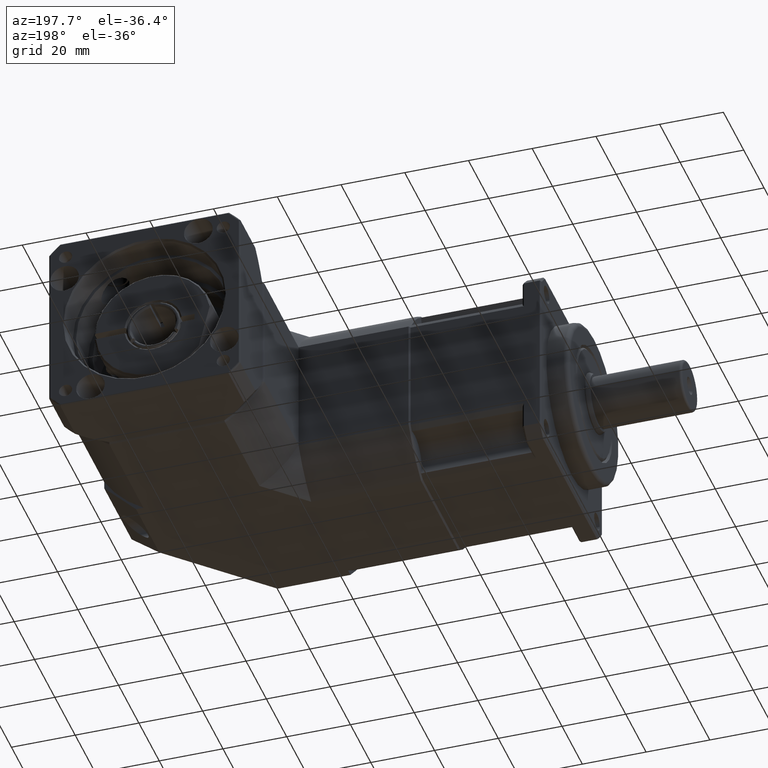
[diagram: clean part render]
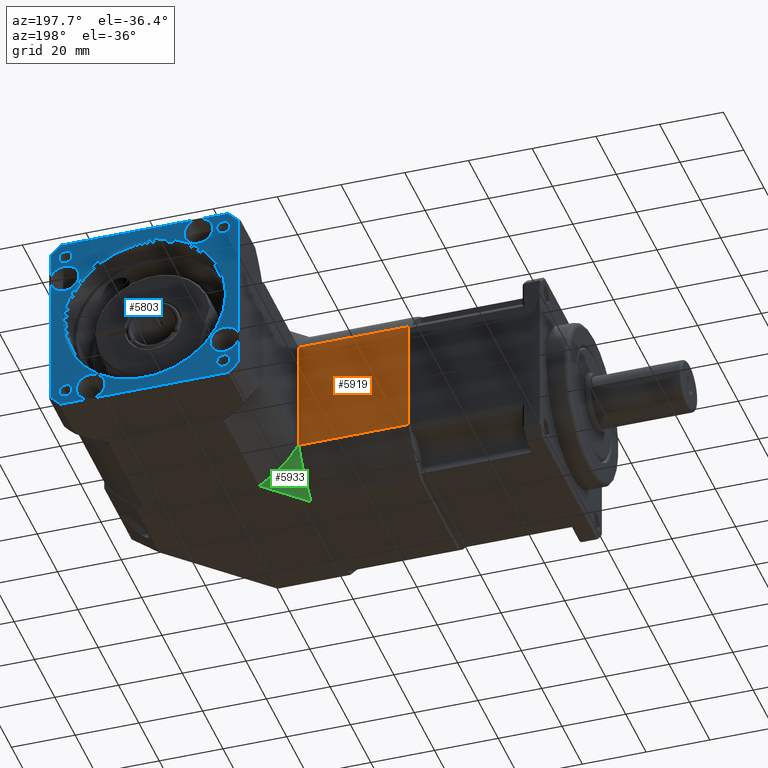
[diagram: same view with three faces highlighted in distinct colors, each labeled with its STEP entity id]
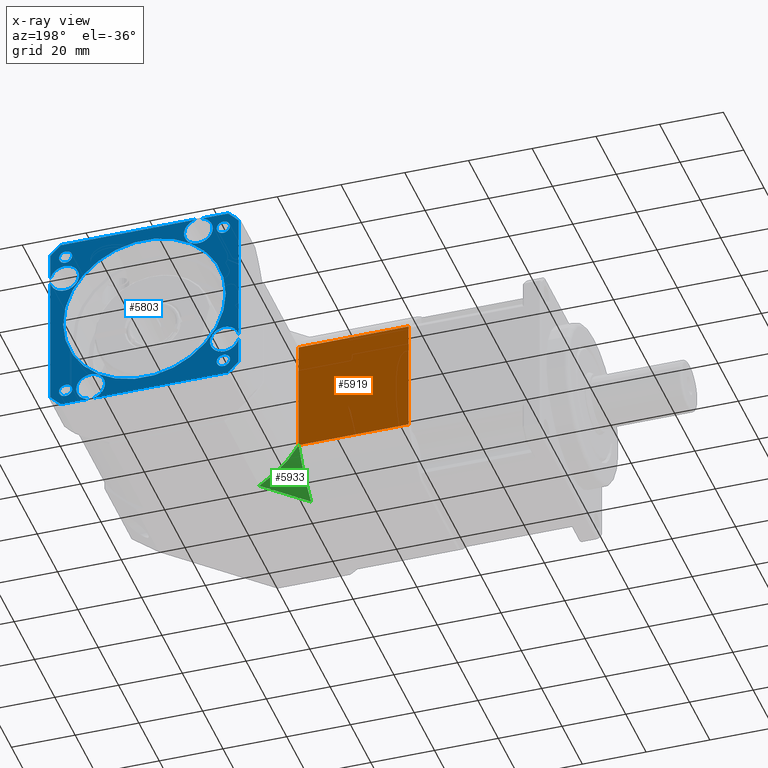
[diagram: x-ray of the same camera — body ghosted, the three highlighted faces saturated]
A machine part, auxiliary view with three faces highlighted in distinct colors.
The next image is the same camera in x-ray (body ghosted, the three faces saturated) — at least one of them is partly hidden behind the body in this view.
Their STEP definitions:

[orange] entity #5919 — the highlighted planar face has unit normal (-0, 1, 0).
#304=LINE('',#9693,#612);
#307=LINE('',#9705,#615);
#308=LINE('',#9707,#616);
#309=LINE('',#9708,#617);
#612=VECTOR('',#7743,34.5000000000291);
#615=VECTOR('',#7754,34.5000000000291);
#616=VECTOR('',#7757,36.3318042491699);
#617=VECTOR('',#7758,36.3318042491699);
#973=PLANE('',#6521);
#1451=FACE_OUTER_BOUND('',#1952,.T.);
#1952=EDGE_LOOP('',(#4518,#4519,#4520,#4521));
#2801=VERTEX_POINT('',#9689);
#2803=VERTEX_POINT('',#9692);
#2806=VERTEX_POINT('',#9699);
#2808=VERTEX_POINT('',#9703);
#3426=EDGE_CURVE('',#2803,#2801,#304,.T.);
#3432=EDGE_CURVE('',#2806,#2808,#307,.T.);
#3433=EDGE_CURVE('',#2806,#2801,#308,.T.);
#3434=EDGE_CURVE('',#2808,#2803,#309,.T.);
#4518=ORIENTED_EDGE('',*,*,#3433,.F.);
#4519=ORIENTED_EDGE('',*,*,#3432,.T.);
#4520=ORIENTED_EDGE('',*,*,#3434,.T.);
#4521=ORIENTED_EDGE('',*,*,#3426,.T.);
#5919=ADVANCED_FACE('',(#1451),#973,.T.);
#6521=AXIS2_PLACEMENT_3D('',#9706,#7755,#7756);
#7743=DIRECTION('',(-1.,-9.87312714595288E-16,-3.19187243517474E-15));
#7754=DIRECTION('',(1.,9.87312714595288E-16,3.19187243517474E-15));
#7755=DIRECTION('center_axis',(-9.87312714595289E-16,1.,2.66949609919315E-16));
#7756=DIRECTION('ref_axis',(-3.19744231092045E-15,0.,1.));
#7757=DIRECTION('',(3.19187243517474E-15,2.66949609919318E-16,-1.));
#7758=DIRECTION('',(3.19187243517474E-15,2.66949609919318E-16,-1.));
#9689=CARTESIAN_POINT('',(3.90791957866304,78.6548138820487,-15.7822515571784));
#9692=CARTESIAN_POINT('',(38.4079195786921,78.6548138820487,-15.7822515571782));
#9693=CARTESIAN_POINT('',(3.40791957866304,78.6548138820487,-15.7822515571784));
#9699=CARTESIAN_POINT('',(3.90791957866292,78.6548138820487,20.5495526919915));
#9703=CARTESIAN_POINT('',(38.407919578692,78.6548138820487,20.5495526919916));
#9705=CARTESIAN_POINT('',(3.40791957866292,78.6548138820487,20.5495526919915));
#9706=CARTESIAN_POINT('Origin',(3.40791957866308,78.6548138820487,-28.1163494325934));
#9707=CARTESIAN_POINT('',(3.90791957866303,78.6548138820487,-12.8663494325934));
#9708=CARTESIAN_POINT('',(38.4079195786922,78.6548138820487,-28.1163494326078));

[blue] entity #5803 — the highlighted planar face has unit normal (-0, 1, -0).
#219=LINE('',#8962,#527);
#220=LINE('',#8966,#528);
#221=LINE('',#8970,#529);
#222=LINE('',#8974,#530);
#223=LINE('',#8978,#531);
#224=LINE('',#8982,#532);
#225=LINE('',#8986,#533);
#226=LINE('',#8990,#534);
#527=VECTOR('',#7182,42.3471740795691);
#528=VECTOR('',#7185,8.51600341958886);
#529=VECTOR('',#7188,42.3471740795691);
#530=VECTOR('',#7191,8.51600341958889);
#531=VECTOR('',#7194,42.3471740795691);
#532=VECTOR('',#7197,8.51600341958885);
#533=VECTOR('',#7200,42.3471740795691);
#534=VECTOR('',#7203,8.51600341958891);
#933=PLANE('',#6278);
#1127=FACE_BOUND('',#1779,.T.);
#1128=FACE_BOUND('',#1780,.T.);
#1129=FACE_BOUND('',#1781,.T.);
#1130=FACE_BOUND('',#1782,.T.);
#1131=FACE_BOUND('',#1783,.T.);
#1335=FACE_OUTER_BOUND('',#1778,.T.);
#1778=EDGE_LOOP('',(#4055,#4056,#4057,#4058,#4059,#4060,#4061,#4062,#4063,
#4064,#4065,#4066,#4067,#4068,#4069,#4070));
#1779=EDGE_LOOP('',(#4071));
#1780=EDGE_LOOP('',(#4072));
#1781=EDGE_LOOP('',(#4073));
#1782=EDGE_LOOP('',(#4074));
#1783=EDGE_LOOP('',(#4075));
#2279=CIRCLE('',#6277,25.5);
#2280=CIRCLE('',#6279,39.5);
#2281=CIRCLE('',#6280,4.5);
#2282=CIRCLE('',#6281,39.5);
#2283=CIRCLE('',#6282,4.5);
#2284=CIRCLE('',#6283,39.5);
#2285=CIRCLE('',#6284,4.5);
#2286=CIRCLE('',#6285,39.5);
#2287=CIRCLE('',#6286,4.5);
#2288=CIRCLE('',#6287,2.067);
#2289=CIRCLE('',#6288,2.067);
#2290=CIRCLE('',#6289,2.067);
#2291=CIRCLE('',#6290,2.067);
#2635=VERTEX_POINT('',#8957);
#2636=VERTEX_POINT('',#8960);
#2637=VERTEX_POINT('',#8961);
#2638=VERTEX_POINT('',#8963);
#2639=VERTEX_POINT('',#8965);
#2640=VERTEX_POINT('',#8967);
#2641=VERTEX_POINT('',#8969);
#2642=VERTEX_POINT('',#8971);
#2643=VERTEX_POINT('',#8973);
#2644=VERTEX_POINT('',#8975);
#2645=VERTEX_POINT('',#8977);
#2646=VERTEX_POINT('',#8979);
#2647=VERTEX_POINT('',#8981);
#2648=VERTEX_POINT('',#8983);
#2649=VERTEX_POINT('',#8985);
#2650=VERTEX_POINT('',#8987);
#2651=VERTEX_POINT('',#8989);
#2652=VERTEX_POINT('',#8992);
#2653=VERTEX_POINT('',#8994);
#2654=VERTEX_POINT('',#8996);
#2655=VERTEX_POINT('',#8998);
#3187=EDGE_CURVE('',#2635,#2635,#2279,.T.);
#3188=EDGE_CURVE('',#2636,#2637,#219,.T.);
#3189=EDGE_CURVE('',#2638,#2636,#2280,.T.);
#3190=EDGE_CURVE('',#2639,#2638,#220,.T.);
#3191=EDGE_CURVE('',#2639,#2640,#2281,.T.);
#3192=EDGE_CURVE('',#2641,#2640,#221,.T.);
#3193=EDGE_CURVE('',#2642,#2641,#2282,.T.);
#3194=EDGE_CURVE('',#2643,#2642,#222,.T.);
#3195=EDGE_CURVE('',#2643,#2644,#2283,.T.);
#3196=EDGE_CURVE('',#2645,#2644,#223,.T.);
#3197=EDGE_CURVE('',#2646,#2645,#2284,.T.);
#3198=EDGE_CURVE('',#2647,#2646,#224,.T.);
#3199=EDGE_CURVE('',#2647,#2648,#2285,.T.);
#3200=EDGE_CURVE('',#2649,#2648,#225,.T.);
#3201=EDGE_CURVE('',#2650,#2649,#2286,.T.);
#3202=EDGE_CURVE('',#2651,#2650,#226,.T.);
#3203=EDGE_CURVE('',#2651,#2637,#2287,.T.);
#3204=EDGE_CURVE('',#2652,#2652,#2288,.T.);
#3205=EDGE_CURVE('',#2653,#2653,#2289,.T.);
#3206=EDGE_CURVE('',#2654,#2654,#2290,.T.);
#3207=EDGE_CURVE('',#2655,#2655,#2291,.T.);
#4055=ORIENTED_EDGE('',*,*,#3188,.F.);
#4056=ORIENTED_EDGE('',*,*,#3189,.F.);
#4057=ORIENTED_EDGE('',*,*,#3190,.F.);
#4058=ORIENTED_EDGE('',*,*,#3191,.T.);
#4059=ORIENTED_EDGE('',*,*,#3192,.F.);
#4060=ORIENTED_EDGE('',*,*,#3193,.F.);
#4061=ORIENTED_EDGE('',*,*,#3194,.F.);
#4062=ORIENTED_EDGE('',*,*,#3195,.T.);
#4063=ORIENTED_EDGE('',*,*,#3196,.F.);
#4064=ORIENTED_EDGE('',*,*,#3197,.F.);
#4065=ORIENTED_EDGE('',*,*,#3198,.F.);
#4066=ORIENTED_EDGE('',*,*,#3199,.T.);
#4067=ORIENTED_EDGE('',*,*,#3200,.F.);
#4068=ORIENTED_EDGE('',*,*,#3201,.F.);
#4069=ORIENTED_EDGE('',*,*,#3202,.F.);
#4070=ORIENTED_EDGE('',*,*,#3203,.T.);
#4071=ORIENTED_EDGE('',*,*,#3204,.T.);
#4072=ORIENTED_EDGE('',*,*,#3205,.T.);
#4073=ORIENTED_EDGE('',*,*,#3206,.T.);
#4074=ORIENTED_EDGE('',*,*,#3207,.T.);
#4075=ORIENTED_EDGE('',*,*,#3187,.F.);
#5803=ADVANCED_FACE('',(#1335,#1127,#1128,#1129,#1130,#1131),#933,.T.);
#6277=AXIS2_PLACEMENT_3D('',#8958,#7178,#7179);
#6278=AXIS2_PLACEMENT_3D('',#8959,#7180,#7181);
#6279=AXIS2_PLACEMENT_3D('',#8964,#7183,#7184);
#6280=AXIS2_PLACEMENT_3D('',#8968,#7186,#7187);
#6281=AXIS2_PLACEMENT_3D('',#8972,#7189,#7190);
#6282=AXIS2_PLACEMENT_3D('',#8976,#7192,#7193);
#6283=AXIS2_PLACEMENT_3D('',#8980,#7195,#7196);
#6284=AXIS2_PLACEMENT_3D('',#8984,#7198,#7199);
#6285=AXIS2_PLACEMENT_3D('',#8988,#7201,#7202);
#6286=AXIS2_PLACEMENT_3D('',#8991,#7204,#7205);
#6287=AXIS2_PLACEMENT_3D('',#8993,#7206,#7207);
#6288=AXIS2_PLACEMENT_3D('',#8995,#7208,#7209);
#6289=AXIS2_PLACEMENT_3D('',#8997,#7210,#7211);
#6290=AXIS2_PLACEMENT_3D('',#8999,#7212,#7213);
#7178=DIRECTION('center_axis',(-1.04520023456132E-15,1.,-1.31997762995428E-15));
#7179=DIRECTION('ref_axis',(-1.,-1.04520023456133E-15,-3.97598620693892E-15));
#7180=DIRECTION('center_axis',(-1.04520023456132E-15,1.,-1.31997762995428E-15));
#7181=DIRECTION('ref_axis',(-4.2632564145606E-15,0.,1.));
#7182=DIRECTION('',(-1.,-1.04520023456133E-15,-3.80813626276885E-15));
#7183=DIRECTION('center_axis',(1.04520023456132E-15,-1.,1.31997762995428E-15));
#7184=DIRECTION('ref_axis',(0.707106781186545,1.6724333067113E-15,0.707106781186551));
#7185=DIRECTION('',(-4.14383615110898E-15,1.31997762995428E-15,1.));
#7186=DIRECTION('center_axis',(1.04520023456132E-15,-1.,1.31997762995428E-15));
#7187=DIRECTION('ref_axis',(-3.97598620693892E-15,1.31997762995428E-15,
1.));
#7188=DIRECTION('',(-4.14383615110898E-15,1.31997762995428E-15,1.));
#7189=DIRECTION('center_axis',(1.04520023456132E-15,-1.,1.31997762995428E-15));
#7190=DIRECTION('ref_axis',(0.70710678118655,-1.9429695959913E-16,-0.707106781186545));
#7191=DIRECTION('',(1.,1.04520023456133E-15,3.97598620693892E-15));
#7192=DIRECTION('center_axis',(1.04520023456132E-15,-1.,1.31997762995428E-15));
#7193=DIRECTION('ref_axis',(1.,1.04520023456133E-15,3.79228918706681E-15));
#7194=DIRECTION('',(1.,1.04520023456133E-15,3.97598620693892E-15));
#7195=DIRECTION('center_axis',(1.04520023456132E-15,-1.,1.31997762995428E-15));
#7196=DIRECTION('ref_axis',(-0.707106781186544,-1.6724333067113E-15,-0.707106781186551));
#7197=DIRECTION('',(4.31168609527904E-15,-1.31997762995427E-15,-1.));
#7198=DIRECTION('center_axis',(1.04520023456132E-15,-1.,1.31997762995428E-15));
#7199=DIRECTION('ref_axis',(3.85352152702418E-15,-1.31997762995428E-15,
-1.));
#7200=DIRECTION('',(4.31168609527904E-15,-1.31997762995427E-15,-1.));
#7201=DIRECTION('center_axis',(1.04520023456132E-15,-1.,1.31997762995428E-15));
#7202=DIRECTION('ref_axis',(-0.70710678118655,1.9429695959913E-16,0.707106781186545));
#7203=DIRECTION('',(-1.,-1.04520023456133E-15,-3.80813626276885E-15));
#7204=DIRECTION('center_axis',(1.04520023456132E-15,-1.,1.31997762995428E-15));
#7205=DIRECTION('ref_axis',(-1.,-1.04520023456133E-15,-3.91475386698155E-15));
#7206=DIRECTION('center_axis',(1.04520023456132E-15,-1.,1.31997762995428E-15));
#7207=DIRECTION('ref_axis',(1.,1.04520023456133E-15,3.79228918706681E-15));
#7208=DIRECTION('center_axis',(1.04520023456132E-15,-1.,1.31997762995428E-15));
#7209=DIRECTION('ref_axis',(3.85352152702418E-15,-1.31997762995428E-15,
-1.));
#7210=DIRECTION('center_axis',(1.04520023456132E-15,-1.,1.31997762995428E-15));
#7211=DIRECTION('ref_axis',(-1.,-1.04520023456133E-15,-3.91475386698155E-15));
#7212=DIRECTION('center_axis',(1.04520023456132E-15,-1.,1.31997762995428E-15));
#7213=DIRECTION('ref_axis',(-3.97598620693892E-15,1.31997762995428E-15,
1.));
#8957=CARTESIAN_POINT('',(94.4079195786627,134.654813882048,2.38365056737781));
#8958=CARTESIAN_POINT('Origin',(68.9079195786627,134.654813882048,2.38365056737772));
#8959=CARTESIAN_POINT('Origin',(68.9079195786627,134.654813882048,2.38365056737772));
#8960=CARTESIAN_POINT('',(95.17577065179,134.654813882048,31.8836505673778));
#8961=CARTESIAN_POINT('',(52.8285965722208,134.654813882048,31.8836505673777));
#8962=CARTESIAN_POINT('',(82.1366761339855,134.654813882048,31.8836505673778));
#8963=CARTESIAN_POINT('',(98.4079195786626,134.654813882048,28.6515016405052));
#8964=CARTESIAN_POINT('Origin',(68.9079195786627,134.654813882048,2.38365056737772));
#8965=CARTESIAN_POINT('',(98.4079195786626,134.654813882048,20.1354982209164));
#8966=CARTESIAN_POINT('',(98.4079195786627,134.654813882048,-10.8451059879451));
#8967=CARTESIAN_POINT('',(98.4079195786626,134.654813882048,18.4629735738195));
#8968=CARTESIAN_POINT('Origin',(93.9863061484526,134.654813882048,19.2992358973679));
#8969=CARTESIAN_POINT('',(98.4079195786628,134.654813882048,-23.8842005057496));
#8970=CARTESIAN_POINT('',(98.4079195786627,134.654813882048,-10.8451059879451));
#8971=CARTESIAN_POINT('',(95.1757706517902,134.654813882048,-27.1163494326222));
#8972=CARTESIAN_POINT('Origin',(68.9079195786627,134.654813882048,2.38365056737772));
#8973=CARTESIAN_POINT('',(86.6597672322013,134.654813882048,-27.1163494326222));
#8974=CARTESIAN_POINT('',(55.6791630233398,134.654813882048,-27.1163494326223));
#8975=CARTESIAN_POINT('',(84.9872425851045,134.654813882048,-27.1163494326222));
#8976=CARTESIAN_POINT('Origin',(85.8235049086529,134.654813882048,-22.6947360024122));
#8977=CARTESIAN_POINT('',(42.6400685055354,134.654813882048,-27.1163494326224));
#8978=CARTESIAN_POINT('',(55.6791630233398,134.654813882048,-27.1163494326223));
#8979=CARTESIAN_POINT('',(39.4079195786628,134.654813882048,-23.8842005057498));
#8980=CARTESIAN_POINT('Origin',(68.9079195786627,134.654813882048,2.38365056737772));
#8981=CARTESIAN_POINT('',(39.4079195786628,134.654813882048,-15.368197086161));
#8982=CARTESIAN_POINT('',(39.4079195786626,134.654813882048,15.6124071227005));
#8983=CARTESIAN_POINT('',(39.4079195786627,134.654813882048,-13.6956724390641));
#8984=CARTESIAN_POINT('Origin',(43.8295330088727,134.654813882048,-14.5319347626125));
#8985=CARTESIAN_POINT('',(39.4079195786626,134.654813882048,28.651501640505));
#8986=CARTESIAN_POINT('',(39.4079195786626,134.654813882048,15.6124071227005));
#8987=CARTESIAN_POINT('',(42.6400685055352,134.654813882048,31.8836505673776));
#8988=CARTESIAN_POINT('Origin',(68.9079195786627,134.654813882048,2.38365056737772));
#8989=CARTESIAN_POINT('',(51.1560719251241,134.654813882048,31.8836505673777));
#8990=CARTESIAN_POINT('',(82.1366761339855,134.654813882048,31.8836505673778));
#8991=CARTESIAN_POINT('Origin',(51.9923342486725,134.654813882048,27.4620371371677));
#8992=CARTESIAN_POINT('',(95.7242572364667,134.654813882048,27.1329882251819));
#8993=CARTESIAN_POINT('Origin',(93.6572572364667,134.654813882048,27.1329882251819));
#8994=CARTESIAN_POINT('',(93.6572572364669,134.654813882048,-24.4326870904263));
#8995=CARTESIAN_POINT('Origin',(93.6572572364669,134.654813882048,-22.3656870904263));
#8996=CARTESIAN_POINT('',(42.0915819208587,134.654813882048,-22.3656870904265));
#8997=CARTESIAN_POINT('Origin',(44.1585819208587,134.654813882048,-22.3656870904265));
#8998=CARTESIAN_POINT('',(44.1585819208585,134.654813882048,29.1999882251817));
#8999=CARTESIAN_POINT('Origin',(44.1585819208585,134.654813882048,27.1329882251817));

[green] entity #5933 — the highlighted face is a freeform B-spline surface patch.
#14=B_SPLINE_SURFACE_WITH_KNOTS('',3,3,((#9783,#9784,#9785,#9786),(#9787,
#9788,#9789,#9790),(#9791,#9792,#9793,#9794),(#9795,#9796,#9797,#9798)),
 .UNSPECIFIED.,.F.,.F.,.F.,(4,4),(4,4),(0.,1.),(0.,1.),.UNSPECIFIED.);
#338=LINE('',#9799,#646);
#646=VECTOR('',#7831,17.4430484950249);
#1465=FACE_OUTER_BOUND('',#1968,.T.);
#1968=EDGE_LOOP('',(#4573,#4574,#4575));
#2394=CIRCLE('',#6517,35.5);
#2401=CIRCLE('',#6530,35.5);
#2803=VERTEX_POINT('',#9692);
#2804=VERTEX_POINT('',#9694);
#2818=VERTEX_POINT('',#9733);
#3427=EDGE_CURVE('',#2803,#2804,#2394,.T.);
#3447=EDGE_CURVE('',#2818,#2803,#2401,.T.);
#3472=EDGE_CURVE('',#2804,#2818,#338,.T.);
#4573=ORIENTED_EDGE('',*,*,#3447,.F.);
#4574=ORIENTED_EDGE('',*,*,#3472,.F.);
#4575=ORIENTED_EDGE('',*,*,#3427,.F.);
#5933=ADVANCED_FACE('',(#1465),#14,.T.);
#6517=AXIS2_PLACEMENT_3D('',#9695,#7744,#7745);
#6530=AXIS2_PLACEMENT_3D('',#9735,#7783,#7784);
#7744=DIRECTION('center_axis',(-1.,-9.87312714595288E-16,-3.19187243517474E-15));
#7745=DIRECTION('ref_axis',(-3.19187243517474E-15,-2.66949609919318E-16,
1.));
#7783=DIRECTION('center_axis',(-9.87312714595289E-16,1.,2.66949609919315E-16));
#7784=DIRECTION('ref_axis',(-1.,-9.87312714595289E-16,-3.19187243517474E-15));
#7831=DIRECTION('',(0.707106781185564,0.707106781187532,2.44575652300065E-15));
#9692=CARTESIAN_POINT('',(38.4079195786921,78.6548138820487,-15.7822515571782));
#9694=CARTESIAN_POINT('',(38.4079195786631,66.3207160066336,-28.1163494325933));
#9695=CARTESIAN_POINT('Origin',(38.407919578663,48.1548138820487,2.38365056740669));
#9733=CARTESIAN_POINT('',(50.7420174540438,78.6548138820487,-28.1163494325933));
#9735=CARTESIAN_POINT('Origin',(68.9079195786776,78.6548138820487,2.3836505673777));
#9783=CARTESIAN_POINT('Ctrl Pts',(38.4079195786686,78.6548138820487,-15.7822515571923));
#9784=CARTESIAN_POINT('Ctrl Pts',(38.4079195786668,78.6548138820487,-15.7822515571876));
#9785=CARTESIAN_POINT('Ctrl Pts',(38.4079195786649,78.6548138820487,-15.7822515571829));
#9786=CARTESIAN_POINT('Ctrl Pts',(38.407919578663,78.6548138820487,-15.7822515571782));
#9787=CARTESIAN_POINT('Ctrl Pts',(41.4139860169079,78.6548138820487,-20.8293461488954));
#9788=CARTESIAN_POINT('Ctrl Pts',(40.4135520233186,77.6543798884582,-20.829346148894));
#9789=CARTESIAN_POINT('Ctrl Pts',(39.4083535722524,76.6491814373908,-20.8293461488925));
#9790=CARTESIAN_POINT('Ctrl Pts',(38.4079195786631,75.6487474438002,-20.8293461488911));
#9791=CARTESIAN_POINT('Ctrl Pts',(45.694922862347,78.6548138820487,-25.1102829943434));
#9792=CARTESIAN_POINT('Ctrl Pts',(43.2673858358876,76.2272768555832,-25.1102829943439));
#9793=CARTESIAN_POINT('Ctrl Pts',(40.8354566051225,73.795347624812,-25.1102829943444));
#9794=CARTESIAN_POINT('Ctrl Pts',(38.4079195786631,71.3678105983466,-25.1102829943448));
#9795=CARTESIAN_POINT('Ctrl Pts',(50.7420174540438,78.6548138820487,-28.1163494325933));
#9796=CARTESIAN_POINT('Ctrl Pts',(46.6306514955836,74.543447923577,-28.1163494325933));
#9797=CARTESIAN_POINT('Ctrl Pts',(42.5192855371233,70.4320819651054,-28.1163494325933));
#9798=CARTESIAN_POINT('Ctrl Pts',(38.4079195786631,66.3207160066337,-28.1163494325933));
#9799=CARTESIAN_POINT('',(50.7420174540438,78.6548138820487,-28.1163494325933));